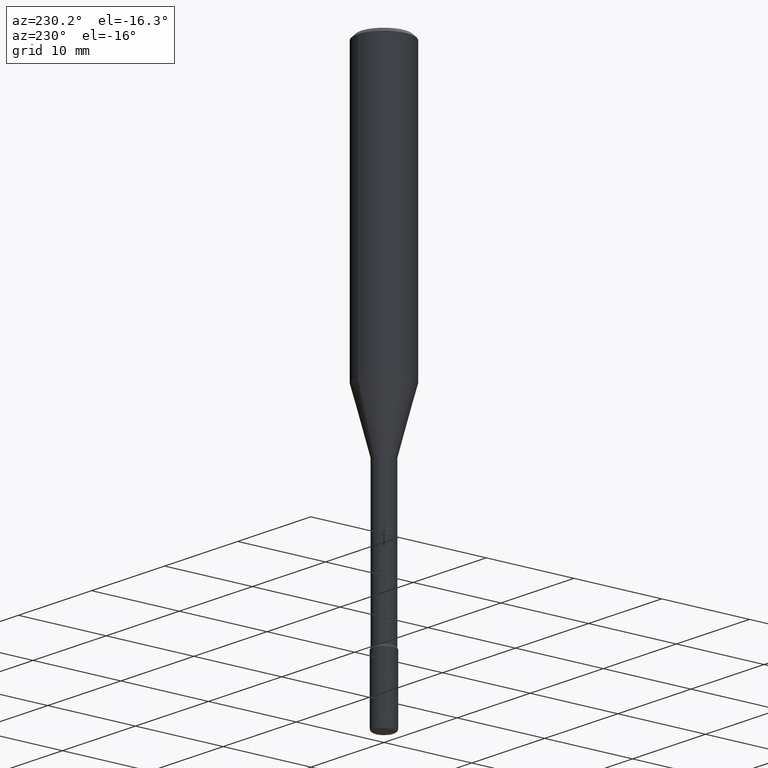
[diagram: clean part render]
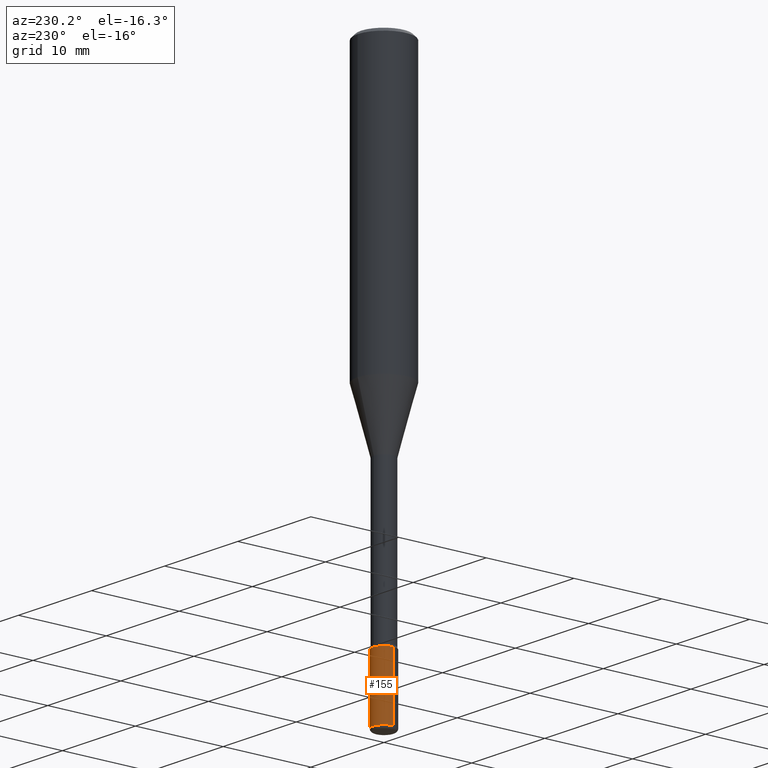
[diagram: same view with one face highlighted and labeled with its STEP entity id]
A machine part, auxiliary view. The second image highlights one B-rep face of the part: STEP entity #155.
In plain terms, the highlighted cylindrical surface (edge-blend (fillet) strip) has radius 1.2497 mm, axis along (-0, 0, 1).
Its self-contained STEP definition (entity closure, byte-faithful):
#1 = VECTOR ( 'NONE', #26, 39.37007874015748143 ) ;
#6 = EDGE_CURVE ( 'NONE', #207, #192, #478, .T. ) ;
#26 = DIRECTION ( 'NONE',  ( -2.445468806185136877E-29, 3.491481338843145188E-15, 1.000000000000000000 ) ) ;
#52 = DIRECTION ( 'NONE',  ( 1.000000000000000000, -6.982962677686261977E-15, 0.000000000000000000 ) ) ;
#61 = DIRECTION ( 'NONE',  ( 1.000000000000000000, -6.982962677686266711E-15, 4.876176775795935793E-29 ) ) ;
#84 = AXIS2_PLACEMENT_3D ( 'NONE', #348, #486, #526 ) ;
#131 = CARTESIAN_POINT ( 'NONE',  ( 0.04920000000000017415, -9.031065631051680405E-15, -2.488199999999999967 ) ) ;
#135 = EDGE_CURVE ( 'NONE', #201, #192, #571, .T. ) ;
#155 = ADVANCED_FACE ( 'NONE', ( #420 ), #160, .T. ) ;
#157 = LINE ( 'NONE', #474, #1 ) ;
#160 = CYLINDRICAL_SURFACE ( 'NONE', #452, 0.04920000000000000068 ) ;
#192 = VERTEX_POINT ( 'NONE', #550 ) ;
#201 = VERTEX_POINT ( 'NONE', #286 ) ;
#207 = VERTEX_POINT ( 'NONE', #325 ) ;
#210 = VECTOR ( 'NONE', #339, 39.37007874015748143 ) ;
#238 = CARTESIAN_POINT ( 'NONE',  ( 0.000000000000000000, 0.000000000000000000, 0.000000000000000000 ) ) ;
#257 = AXIS2_PLACEMENT_3D ( 'NONE', #425, #457, #52 ) ;
#261 = EDGE_CURVE ( 'NONE', #403, #201, #157, .T. ) ;
#286 = CARTESIAN_POINT ( 'NONE',  ( 0.04920000000000000068, -8.041230671489647649E-15, -2.204700000000000326 ) ) ;
#325 = CARTESIAN_POINT ( 'NONE',  ( -0.04920000000000017415, -8.337916841315544070E-15, -2.488199999999999967 ) ) ;
#337 = ORIENTED_EDGE ( 'NONE', *, *, #6, .T. ) ;
#339 = DIRECTION ( 'NONE',  ( -2.445468806185136877E-29, 3.491481338843145188E-15, 1.000000000000000000 ) ) ;
#348 = CARTESIAN_POINT ( 'NONE',  ( 6.084815483549856310E-29, -8.687503867309514303E-15, -2.488199999999999967 ) ) ;
#357 = EDGE_LOOP ( 'NONE', ( #467, #337, #515, #508 ) ) ;
#381 = DIRECTION ( 'NONE',  ( -2.445468806185136597E-29, 3.491481338843145583E-15, 1.000000000000000000 ) ) ;
#403 = VERTEX_POINT ( 'NONE', #131 ) ;
#420 = FACE_OUTER_BOUND ( 'NONE', #357, .T. ) ;
#425 = CARTESIAN_POINT ( 'NONE',  ( 5.391525076996371277E-29, -7.697668907747483125E-15, -2.204700000000000326 ) ) ;
#435 = CIRCLE ( 'NONE', #84, 0.04920000000000000762 ) ;
#448 = EDGE_CURVE ( 'NONE', #403, #207, #435, .T. ) ;
#452 = AXIS2_PLACEMENT_3D ( 'NONE', #238, #381, #61 ) ;
#457 = DIRECTION ( 'NONE',  ( -2.445468806185136597E-29, 3.491481338843145583E-15, 1.000000000000000000 ) ) ;
#467 = ORIENTED_EDGE ( 'NONE', *, *, #448, .T. ) ;
#474 = CARTESIAN_POINT ( 'NONE',  ( 0.04920000000000000068, -3.435617637421643269E-16, 2.399078973691600472E-30 ) ) ;
#478 = LINE ( 'NONE', #564, #210 ) ;
#486 = DIRECTION ( 'NONE',  ( -2.445468806185136597E-29, 3.491481338843145583E-15, 1.000000000000000000 ) ) ;
#508 = ORIENTED_EDGE ( 'NONE', *, *, #261, .F. ) ;
#515 = ORIENTED_EDGE ( 'NONE', *, *, #135, .F. ) ;
#526 = DIRECTION ( 'NONE',  ( 1.000000000000000000, -6.982962677686260400E-15, 0.000000000000000000 ) ) ;
#550 = CARTESIAN_POINT ( 'NONE',  ( -0.04920000000000000068, -7.842999361534530848E-15, -2.204700000000000326 ) ) ;
#564 = CARTESIAN_POINT ( 'NONE',  ( -0.04920000000000000068, 3.495870259939692963E-16, -2.420116064405413767E-30 ) ) ;
#571 = CIRCLE ( 'NONE', #257, 0.04920000000000000068 ) ;